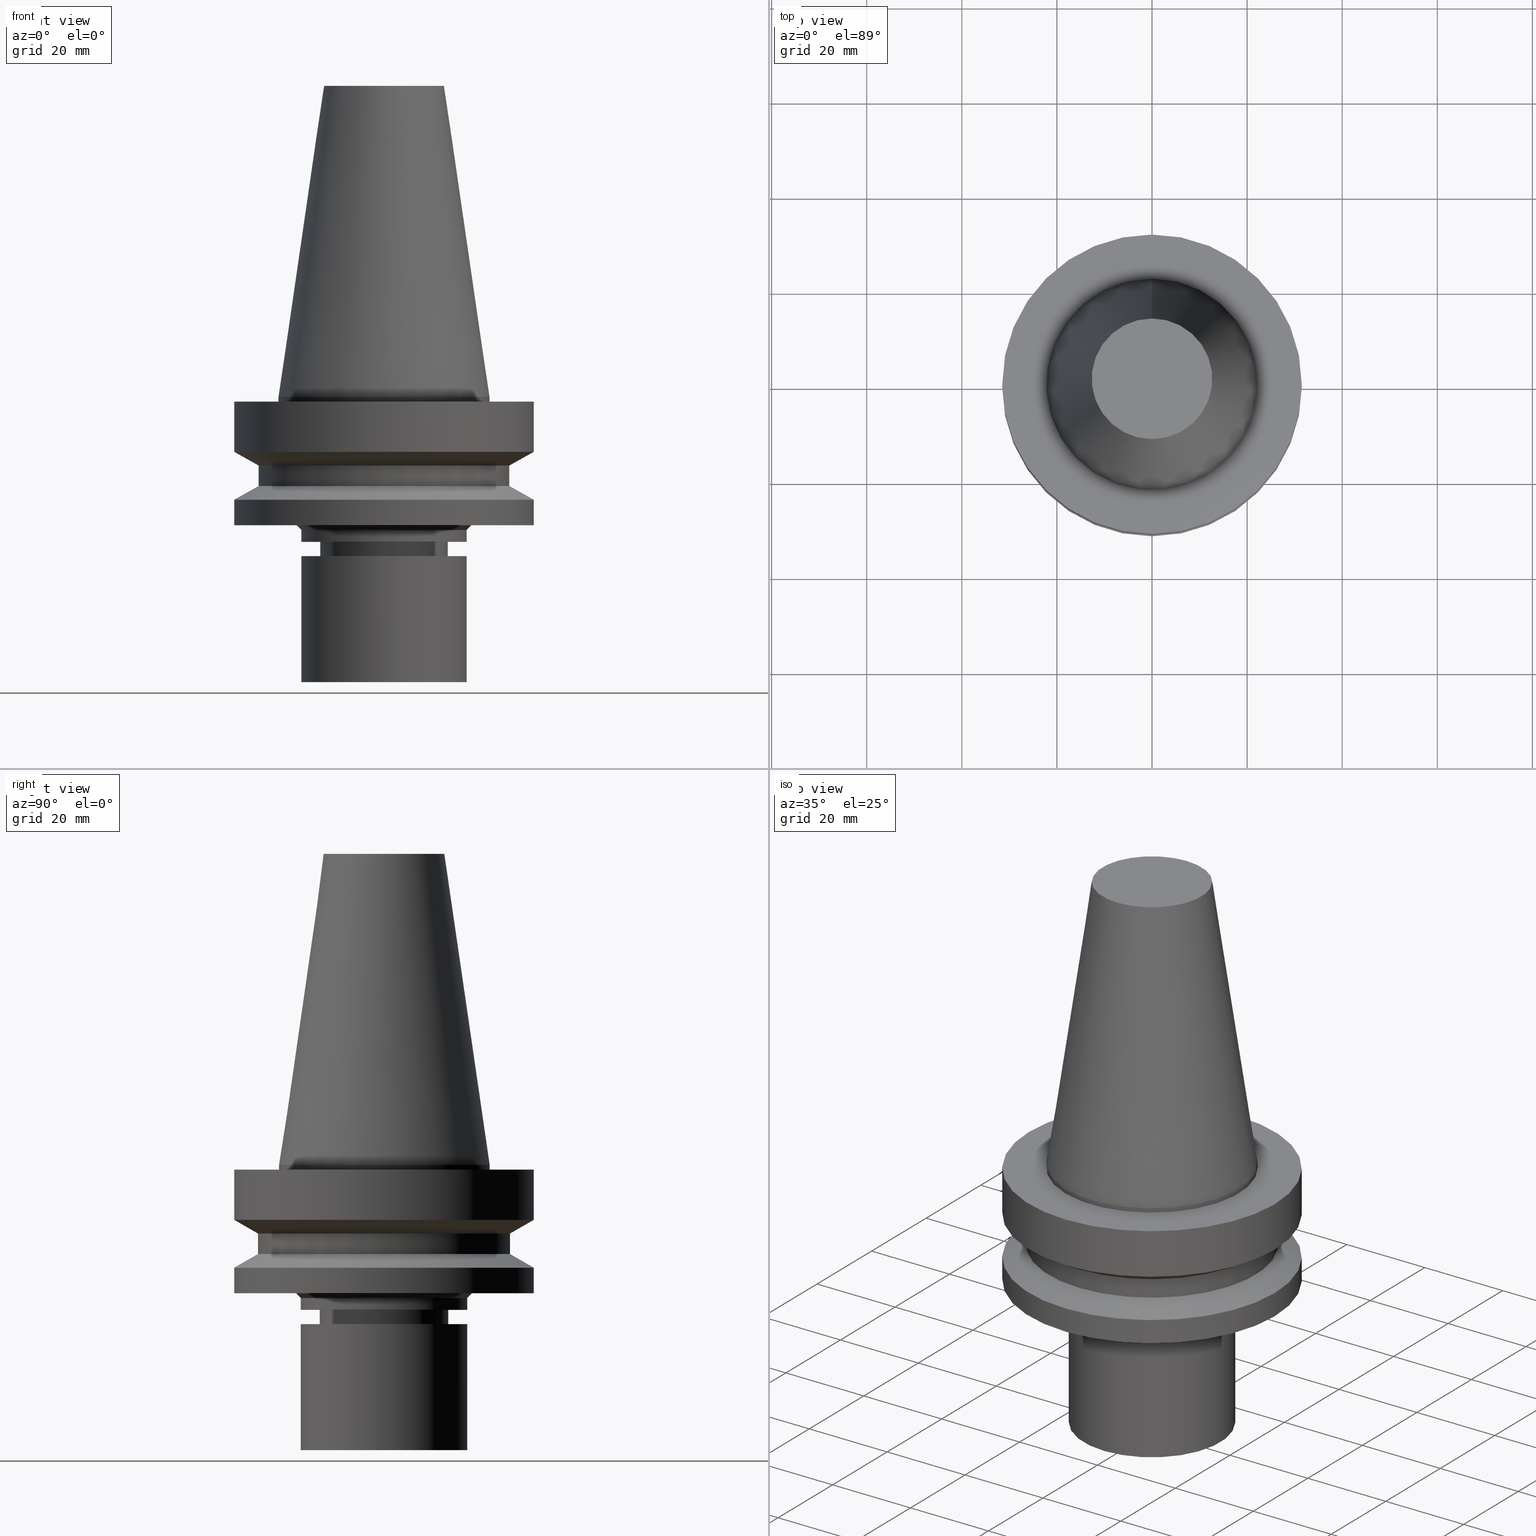
[diagram: canonical four-view strip — front | top / right | iso, engineering-drawing reading convention]
A machine part, canonical four-view strip (front | top / right | iso — engineering-drawing reading convention). The complete STEP part file that produces these views, byte-faithful:
ISO-10303-21;
HEADER;
FILE_DESCRIPTION((''),'1');
FILE_NAME('V:/90_\X2\53D65F9730C730FC30BF\X0\/00_\X2\6DE18DEF30C730FC30BF\X0\/ALL/BBT-BKUS\X2\FF76FF80FF9BFF78FF9E752852A05DE556F3\X0\201801/BBT40-MEGAER/BBT40-MEGAER20-60NL.stp','2018-02-07T01:54:12',(''),(''),'Spatial Interop R21 SP3','Kubotek KeyCreator 2011 V10.0.2 (22737)',' ');
FILE_SCHEMA(('automotive_design'));
ENDSEC;
DATA;
#1=MECHANICAL_DESIGN_GEOMETRIC_PRESENTATION_REPRESENTATION(' ',(#14,#15,#16,#17,#18,#19,#20,#21,#22,#23,#24,#25,#26,#27,#28,#29,#30,#31,#32,#33,#34,#35,#36,#37,#38,#39,#40,#41,#42,#43,#44,#45,#46,#47,#48,#49,#50,#51,#52,#53,#54,#55),#10);
#2=PRODUCT_DEFINITION_CONTEXT('',#56,'design');
#3=APPLICATION_PROTOCOL_DEFINITION('INTERNATIONAL STANDARD','automotive_design',1994,#56);
#4=PRODUCT_CATEGORY_RELATIONSHIP('NONE','NONE',#57,#58);
#5=SHAPE_DEFINITION_REPRESENTATION(#59,#60);
#6=PRODUCT_DEFINITION_CONTEXT('',#61,'design');
#7=APPLICATION_PROTOCOL_DEFINITION('INTERNATIONAL STANDARD','automotive_design',1994,#61);
#8=PRODUCT_CATEGORY_RELATIONSHIP('NONE','NONE',#62,#63);
#9=SHAPE_DEFINITION_REPRESENTATION(#64,#65);
#10= (GEOMETRIC_REPRESENTATION_CONTEXT(3)GLOBAL_UNCERTAINTY_ASSIGNED_CONTEXT((#68))GLOBAL_UNIT_ASSIGNED_CONTEXT((#70,#71,#72))REPRESENTATION_CONTEXT('NONE','WORKSPACE'));
#14=STYLED_ITEM('',(#74,#75),#76);
#15=STYLED_ITEM('',(#77,#78),#79);
#16=STYLED_ITEM('',(#80),#81);
#17=STYLED_ITEM('',(#82),#83);
#18=STYLED_ITEM('',(#84,#85),#86);
#19=STYLED_ITEM('',(#87,#88),#89);
#20=STYLED_ITEM('',(#90,#91),#92);
#21=STYLED_ITEM('',(#93),#94);
#22=STYLED_ITEM('',(#95,#96),#97);
#23=STYLED_ITEM('',(#98,#99),#100);
#24=STYLED_ITEM('',(#101,#102),#103);
#25=STYLED_ITEM('',(#104),#105);
#26=STYLED_ITEM('',(#106),#107);
#27=STYLED_ITEM('',(#108,#109),#110);
#28=STYLED_ITEM('',(#111,#112),#113);
#29=STYLED_ITEM('',(#114),#115);
#30=STYLED_ITEM('',(#116),#117);
#31=STYLED_ITEM('',(#118,#119),#120);
#32=STYLED_ITEM('',(#121,#122),#123);
#33=STYLED_ITEM('',(#124),#125);
#34=STYLED_ITEM('',(#126),#127);
#35=STYLED_ITEM('',(#128,#129),#130);
#36=STYLED_ITEM('',(#131,#132),#133);
#37=STYLED_ITEM('',(#134,#135),#136);
#38=STYLED_ITEM('',(#137,#138),#139);
#39=STYLED_ITEM('',(#140),#141);
#40=STYLED_ITEM('',(#142),#143);
#41=STYLED_ITEM('',(#144),#145);
#42=STYLED_ITEM('',(#146),#147);
#43=STYLED_ITEM('',(#148),#149);
#44=STYLED_ITEM('',(#150,#151),#152);
#45=STYLED_ITEM('',(#153),#154);
#46=STYLED_ITEM('',(#155),#156);
#47=STYLED_ITEM('',(#157),#158);
#48=STYLED_ITEM('',(#159,#160),#161);
#49=STYLED_ITEM('',(#162),#163);
#50=STYLED_ITEM('',(#164,#165),#166);
#51=STYLED_ITEM('',(#167,#168),#169);
#52=STYLED_ITEM('',(#170),#171);
#53=STYLED_ITEM('',(#172,#173),#174);
#54=STYLED_ITEM('',(#175,#176),#177);
#55=STYLED_ITEM('',(#178,#179),#180);
#56=APPLICATION_CONTEXT(' ');
#57=PRODUCT_CATEGORY('part','NONE');
#58=PRODUCT_RELATED_PRODUCT_CATEGORY('detail',' ',(#181));
#59=PRODUCT_DEFINITION_SHAPE('NONE','NONE',#182);
#60=ADVANCED_BREP_SHAPE_REPRESENTATION('Unnamed[1]',(#177,#183),#10);
#61=APPLICATION_CONTEXT(' ');
#62=PRODUCT_CATEGORY('part','NONE');
#63=PRODUCT_RELATED_PRODUCT_CATEGORY('detail',' ',(#184));
#64=PRODUCT_DEFINITION_SHAPE('NONE','NONE',#185);
#65=ADVANCED_BREP_SHAPE_REPRESENTATION('Unnamed[1]',(#123,#186),#10);
#68=UNCERTAINTY_MEASURE_WITH_UNIT(LENGTH_MEASURE(1.0E-006),#70,'','');
#70= (CONVERSION_BASED_UNIT('MILLIMETRE',#189)LENGTH_UNIT()NAMED_UNIT(#192));
#71= (NAMED_UNIT(#194)PLANE_ANGLE_UNIT()SI_UNIT($,.RADIAN.));
#72= (NAMED_UNIT(#194)SOLID_ANGLE_UNIT()SI_UNIT($,.STERADIAN.));
#74=PRESENTATION_STYLE_ASSIGNMENT((#200));
#75=PRESENTATION_STYLE_ASSIGNMENT((#201));
#76=ADVANCED_FACE('Unnamed[1]',(#202,#203),#204,.T.);
#77=PRESENTATION_STYLE_ASSIGNMENT((#205));
#78=PRESENTATION_STYLE_ASSIGNMENT((#206));
#79=ADVANCED_FACE('Unnamed[1]',(#207),#208,.T.);
#80=PRESENTATION_STYLE_ASSIGNMENT((#209));
#81=EDGE_CURVE('Unnamed[1]',#210,#210,#211,.T.);
#82=PRESENTATION_STYLE_ASSIGNMENT((#212));
#83=EDGE_CURVE('Unnamed[1]',#213,#213,#214,.T.);
#84=PRESENTATION_STYLE_ASSIGNMENT((#215));
#85=PRESENTATION_STYLE_ASSIGNMENT((#216));
#86=ADVANCED_FACE('Unnamed[1]',(#217,#218),#219,.T.);
#87=PRESENTATION_STYLE_ASSIGNMENT((#220));
#88=PRESENTATION_STYLE_ASSIGNMENT((#221));
#89=ADVANCED_FACE('Unnamed[1]',(#222,#223),#224,.T.);
#90=PRESENTATION_STYLE_ASSIGNMENT((#225));
#91=PRESENTATION_STYLE_ASSIGNMENT((#226));
#92=ADVANCED_FACE('Unnamed[1]',(#227,#228),#229,.T.);
#93=PRESENTATION_STYLE_ASSIGNMENT((#230));
#94=EDGE_CURVE('Unnamed[1]',#231,#231,#232,.T.);
#95=PRESENTATION_STYLE_ASSIGNMENT((#233));
#96=PRESENTATION_STYLE_ASSIGNMENT((#234));
#97=ADVANCED_FACE('Unnamed[1]',(#235,#236),#237,.T.);
#98=PRESENTATION_STYLE_ASSIGNMENT((#238));
#99=PRESENTATION_STYLE_ASSIGNMENT((#239));
#100=ADVANCED_FACE('Unnamed[1]',(#240,#241),#242,.T.);
#101=PRESENTATION_STYLE_ASSIGNMENT((#243));
#102=PRESENTATION_STYLE_ASSIGNMENT((#244));
#103=ADVANCED_FACE('Unnamed[1]',(#245,#246),#247,.T.);
#104=PRESENTATION_STYLE_ASSIGNMENT((#248));
#105=EDGE_CURVE('Unnamed[1]',#249,#249,#250,.T.);
#106=PRESENTATION_STYLE_ASSIGNMENT((#251));
#107=EDGE_CURVE('Unnamed[1]',#252,#252,#253,.T.);
#108=PRESENTATION_STYLE_ASSIGNMENT((#254));
#109=PRESENTATION_STYLE_ASSIGNMENT((#255));
#110=ADVANCED_FACE('Unnamed[1]',(#256,#257),#258,.T.);
#111=PRESENTATION_STYLE_ASSIGNMENT((#259));
#112=PRESENTATION_STYLE_ASSIGNMENT((#260));
#113=ADVANCED_FACE('Unnamed[1]',(#261),#262,.T.);
#114=PRESENTATION_STYLE_ASSIGNMENT((#263));
#115=EDGE_CURVE('Unnamed[1]',#264,#264,#265,.T.);
#116=PRESENTATION_STYLE_ASSIGNMENT((#266));
#117=EDGE_CURVE('Unnamed[1]',#267,#267,#268,.T.);
#118=PRESENTATION_STYLE_ASSIGNMENT((#269));
#119=PRESENTATION_STYLE_ASSIGNMENT((#270));
#120=ADVANCED_FACE('Unnamed[1]',(#271,#272),#273,.T.);
#121=PRESENTATION_STYLE_ASSIGNMENT((#274));
#122=PRESENTATION_STYLE_ASSIGNMENT((#275));
#123=MANIFOLD_SOLID_BREP('Unnamed[1]',#276);
#124=PRESENTATION_STYLE_ASSIGNMENT((#277));
#125=EDGE_CURVE('Unnamed[1]',#278,#278,#279,.T.);
#126=PRESENTATION_STYLE_ASSIGNMENT((#280));
#127=EDGE_CURVE('Unnamed[1]',#281,#281,#282,.T.);
#128=PRESENTATION_STYLE_ASSIGNMENT((#283));
#129=PRESENTATION_STYLE_ASSIGNMENT((#284));
#130=ADVANCED_FACE('Unnamed[1]',(#285,#286),#287,.T.);
#131=PRESENTATION_STYLE_ASSIGNMENT((#288));
#132=PRESENTATION_STYLE_ASSIGNMENT((#289));
#133=ADVANCED_FACE('Unnamed[1]',(#290),#291,.T.);
#134=PRESENTATION_STYLE_ASSIGNMENT((#292));
#135=PRESENTATION_STYLE_ASSIGNMENT((#293));
#136=ADVANCED_FACE('Unnamed[1]',(#294,#295),#296,.T.);
#137=PRESENTATION_STYLE_ASSIGNMENT((#297));
#138=PRESENTATION_STYLE_ASSIGNMENT((#298));
#139=ADVANCED_FACE('Unnamed[1]',(#299,#300),#301,.T.);
#140=PRESENTATION_STYLE_ASSIGNMENT((#302));
#141=EDGE_CURVE('Unnamed[1]',#303,#303,#304,.T.);
#142=PRESENTATION_STYLE_ASSIGNMENT((#305));
#143=EDGE_CURVE('Unnamed[1]',#306,#306,#307,.T.);
#144=PRESENTATION_STYLE_ASSIGNMENT((#308));
#145=EDGE_CURVE('Unnamed[1]',#309,#309,#310,.T.);
#146=PRESENTATION_STYLE_ASSIGNMENT((#311));
#147=EDGE_CURVE('Unnamed[1]',#312,#312,#313,.T.);
#148=PRESENTATION_STYLE_ASSIGNMENT((#314));
#149=EDGE_CURVE('Unnamed[1]',#315,#315,#316,.T.);
#150=PRESENTATION_STYLE_ASSIGNMENT((#317));
#151=PRESENTATION_STYLE_ASSIGNMENT((#318));
#152=ADVANCED_FACE('Unnamed[1]',(#319,#320),#321,.T.);
#153=PRESENTATION_STYLE_ASSIGNMENT((#322));
#154=EDGE_CURVE('Unnamed[1]',#323,#323,#324,.T.);
#155=PRESENTATION_STYLE_ASSIGNMENT((#325));
#156=EDGE_CURVE('Unnamed[1]',#326,#326,#327,.T.);
#157=PRESENTATION_STYLE_ASSIGNMENT((#328));
#158=EDGE_CURVE('Unnamed[1]',#329,#329,#330,.T.);
#159=PRESENTATION_STYLE_ASSIGNMENT((#331));
#160=PRESENTATION_STYLE_ASSIGNMENT((#332));
#161=ADVANCED_FACE('Unnamed[1]',(#333),#334,.T.);
#162=PRESENTATION_STYLE_ASSIGNMENT((#335));
#163=EDGE_CURVE('Unnamed[1]',#336,#336,#337,.T.);
#164=PRESENTATION_STYLE_ASSIGNMENT((#338));
#165=PRESENTATION_STYLE_ASSIGNMENT((#339));
#166=ADVANCED_FACE('Unnamed[1]',(#340,#341),#342,.T.);
#167=PRESENTATION_STYLE_ASSIGNMENT((#343));
#168=PRESENTATION_STYLE_ASSIGNMENT((#344));
#169=ADVANCED_FACE('Unnamed[1]',(#345,#346),#347,.T.);
#170=PRESENTATION_STYLE_ASSIGNMENT((#348));
#171=EDGE_CURVE('Unnamed[1]',#349,#349,#350,.T.);
#172=PRESENTATION_STYLE_ASSIGNMENT((#351));
#173=PRESENTATION_STYLE_ASSIGNMENT((#352));
#174=ADVANCED_FACE('Unnamed[1]',(#353,#354),#355,.T.);
#175=PRESENTATION_STYLE_ASSIGNMENT((#356));
#176=PRESENTATION_STYLE_ASSIGNMENT((#357));
#177=MANIFOLD_SOLID_BREP('Unnamed[1]',#358);
#178=PRESENTATION_STYLE_ASSIGNMENT((#359));
#179=PRESENTATION_STYLE_ASSIGNMENT((#360));
#180=ADVANCED_FACE('Unnamed[1]',(#361,#362),#363,.T.);
#181=PRODUCT('Unnamed[1]','Unnamed[1]','PART-Unnamed[1]-DESC',(#364));
#182=PRODUCT_DEFINITION('NONE','NONE',#365,#2);
#183=AXIS2_PLACEMENT_3D('',#366,#367,#368);
#184=PRODUCT('Unnamed[1]','Unnamed[1]','PART-Unnamed[1]-DESC',(#369));
#185=PRODUCT_DEFINITION('NONE','NONE',#370,#6);
#186=AXIS2_PLACEMENT_3D('',#371,#372,#373);
#189=LENGTH_MEASURE_WITH_UNIT(LENGTH_MEASURE(1.0),#374);
#192=DIMENSIONAL_EXPONENTS(1.0,0.0,0.0,0.0,0.0,0.0,0.0);
#194=DIMENSIONAL_EXPONENTS(0.0,0.0,0.0,0.0,0.0,0.0,0.0);
#200=SURFACE_STYLE_USAGE(.BOTH.,#375);
#201=CURVE_STYLE('',#376,POSITIVE_LENGTH_MEASURE(1000.0),#377);
#202=FACE_OUTER_BOUND('',#378,.T.);
#203=FACE_BOUND('',#379,.T.);
#204=PLANE('',#380);
#205=SURFACE_STYLE_USAGE(.BOTH.,#381);
#206=CURVE_STYLE('',#382,POSITIVE_LENGTH_MEASURE(1000.0),#383);
#207=FACE_OUTER_BOUND('',#384,.T.);
#208=PLANE('',#385);
#209=CURVE_STYLE('',#386,POSITIVE_LENGTH_MEASURE(1000.0),#387);
#210=VERTEX_POINT('',#388);
#211=CIRCLE('',#389,12.6875000000001);
#212=CURVE_STYLE('',#390,POSITIVE_LENGTH_MEASURE(1000.0),#391);
#213=VERTEX_POINT('',#392);
#214=CIRCLE('',#393,13.4999999999908);
#215=SURFACE_STYLE_USAGE(.BOTH.,#394);
#216=CURVE_STYLE('',#395,POSITIVE_LENGTH_MEASURE(1000.0),#396);
#217=FACE_BOUND('',#397,.T.);
#218=FACE_BOUND('',#398,.T.);
#219=CYLINDRICAL_SURFACE('',#399,26.4999999999997);
#220=SURFACE_STYLE_USAGE(.BOTH.,#400);
#221=CURVE_STYLE('',#401,POSITIVE_LENGTH_MEASURE(1000.0),#402);
#222=FACE_BOUND('',#403,.T.);
#223=FACE_BOUND('',#404,.T.);
#224=CONICAL_SURFACE('',#405,11.9499999999988,0.523598775598656);
#225=SURFACE_STYLE_USAGE(.BOTH.,#406);
#226=CURVE_STYLE('',#407,POSITIVE_LENGTH_MEASURE(1000.0),#408);
#227=FACE_BOUND('',#409,.T.);
#228=FACE_BOUND('',#410,.T.);
#229=CONICAL_SURFACE('',#411,17.9999999999998,0.785398163397183);
#230=CURVE_STYLE('',#412,POSITIVE_LENGTH_MEASURE(1000.0),#413);
#231=VERTEX_POINT('',#414);
#232=CIRCLE('',#415,26.4999999999994);
#233=SURFACE_STYLE_USAGE(.BOTH.,#416);
#234=CURVE_STYLE('',#417,POSITIVE_LENGTH_MEASURE(1000.0),#418);
#235=FACE_BOUND('',#419,.T.);
#236=FACE_BOUND('',#420,.T.);
#237=CONICAL_SURFACE('',#421,17.4562500000001,0.144812498238936);
#238=SURFACE_STYLE_USAGE(.BOTH.,#422);
#239=CURVE_STYLE('',#423,POSITIVE_LENGTH_MEASURE(1000.0),#424);
#240=FACE_BOUND('',#425,.T.);
#241=FACE_BOUND('',#426,.T.);
#242=CYLINDRICAL_SURFACE('',#427,12.4999999999998);
#243=SURFACE_STYLE_USAGE(.BOTH.,#428);
#244=CURVE_STYLE('',#429,POSITIVE_LENGTH_MEASURE(1000.0),#430);
#245=FACE_BOUND('',#431,.T.);
#246=FACE_BOUND('',#432,.T.);
#247=CYLINDRICAL_SURFACE('',#433,17.4999999999998);
#248=CURVE_STYLE('',#434,POSITIVE_LENGTH_MEASURE(1000.0),#435);
#249=VERTEX_POINT('',#436);
#250=CIRCLE('',#437,31.5000000000007);
#251=CURVE_STYLE('',#438,POSITIVE_LENGTH_MEASURE(1000.0),#439);
#252=VERTEX_POINT('',#440);
#253=CIRCLE('',#441,22.225);
#254=SURFACE_STYLE_USAGE(.BOTH.,#442);
#255=CURVE_STYLE('',#443,POSITIVE_LENGTH_MEASURE(1000.0),#444);
#256=FACE_BOUND('',#445,.T.);
#257=FACE_BOUND('',#446,.T.);
#258=CYLINDRICAL_SURFACE('',#447,31.5000000000005);
#259=SURFACE_STYLE_USAGE(.BOTH.,#448);
#260=CURVE_STYLE('',#449,POSITIVE_LENGTH_MEASURE(1000.0),#450);
#261=FACE_OUTER_BOUND('',#451,.T.);
#262=PLANE('',#452);
#263=CURVE_STYLE('',#453,POSITIVE_LENGTH_MEASURE(1000.0),#454);
#264=VERTEX_POINT('',#455);
#265=CIRCLE('',#456,31.5000000000004);
#266=CURVE_STYLE('',#457,POSITIVE_LENGTH_MEASURE(1000.0),#458);
#267=VERTEX_POINT('',#459);
#268=CIRCLE('',#460,17.4999999999998);
#269=SURFACE_STYLE_USAGE(.BOTH.,#461);
#270=CURVE_STYLE('',#462,POSITIVE_LENGTH_MEASURE(1000.0),#463);
#271=FACE_BOUND('',#464,.T.);
#272=FACE_BOUND('',#465,.T.);
#273=CONICAL_SURFACE('',#466,13.0000000000002,1.04719755119483);
#274=SURFACE_STYLE_USAGE(.BOTH.,#467);
#275=CURVE_STYLE('',#468,POSITIVE_LENGTH_MEASURE(1000.0),#469);
#276=CLOSED_SHELL('',(#79,#161,#152));
#277=CURVE_STYLE('',#470,POSITIVE_LENGTH_MEASURE(1000.0),#471);
#278=VERTEX_POINT('',#472);
#279=CIRCLE('',#473,11.3999999999978);
#280=CURVE_STYLE('',#474,POSITIVE_LENGTH_MEASURE(1000.0),#475);
#281=VERTEX_POINT('',#476);
#282=CIRCLE('',#477,26.5);
#283=SURFACE_STYLE_USAGE(.BOTH.,#478);
#284=CURVE_STYLE('',#479,POSITIVE_LENGTH_MEASURE(1000.0),#480);
#285=FACE_BOUND('',#481,.T.);
#286=FACE_OUTER_BOUND('',#482,.T.);
#287=PLANE('',#483);
#288=SURFACE_STYLE_USAGE(.BOTH.,#484);
#289=CURVE_STYLE('',#485,POSITIVE_LENGTH_MEASURE(1000.0),#486);
#290=FACE_OUTER_BOUND('',#487,.T.);
#291=PLANE('',#488);
#292=SURFACE_STYLE_USAGE(.BOTH.,#489);
#293=CURVE_STYLE('',#490,POSITIVE_LENGTH_MEASURE(1000.0),#491);
#294=FACE_BOUND('',#492,.T.);
#295=FACE_BOUND('',#493,.T.);
#296=CYLINDRICAL_SURFACE('',#494,22.225);
#297=SURFACE_STYLE_USAGE(.BOTH.,#495);
#298=CURVE_STYLE('',#496,POSITIVE_LENGTH_MEASURE(1000.0),#497);
#299=FACE_BOUND('',#498,.T.);
#300=FACE_BOUND('',#499,.T.);
#301=CONICAL_SURFACE('',#500,28.9999999999999,1.04719755119657);
#302=CURVE_STYLE('',#501,POSITIVE_LENGTH_MEASURE(1000.0),#502);
#303=VERTEX_POINT('',#503);
#304=CIRCLE('',#504,17.5);
#305=CURVE_STYLE('',#505,POSITIVE_LENGTH_MEASURE(1000.0),#506);
#306=VERTEX_POINT('',#507);
#307=CIRCLE('',#508,12.4999999999999);
#308=CURVE_STYLE('',#509,POSITIVE_LENGTH_MEASURE(1000.0),#510);
#309=VERTEX_POINT('',#511);
#310=CIRCLE('',#512,17.5);
#311=CURVE_STYLE('',#513,POSITIVE_LENGTH_MEASURE(1000.0),#514);
#312=VERTEX_POINT('',#515);
#313=CIRCLE('',#516,22.225);
#314=CURVE_STYLE('',#517,POSITIVE_LENGTH_MEASURE(1000.0),#518);
#315=VERTEX_POINT('',#519);
#316=CIRCLE('',#520,13.5000000000005);
#317=SURFACE_STYLE_USAGE(.BOTH.,#521);
#318=CURVE_STYLE('',#522,POSITIVE_LENGTH_MEASURE(1000.0),#523);
#319=FACE_BOUND('',#524,.T.);
#320=FACE_BOUND('',#525,.T.);
#321=CYLINDRICAL_SURFACE('',#526,17.5);
#322=CURVE_STYLE('',#527,POSITIVE_LENGTH_MEASURE(1000.0),#528);
#323=VERTEX_POINT('',#529);
#324=CIRCLE('',#530,31.4999999999996);
#325=CURVE_STYLE('',#531,POSITIVE_LENGTH_MEASURE(1000.0),#532);
#326=VERTEX_POINT('',#533);
#327=CIRCLE('',#534,17.4999999999997);
#328=CURVE_STYLE('',#535,POSITIVE_LENGTH_MEASURE(1000.0),#536);
#329=VERTEX_POINT('',#537);
#330=CIRCLE('',#538,12.4999999999998);
#331=SURFACE_STYLE_USAGE(.BOTH.,#539);
#332=CURVE_STYLE('',#540,POSITIVE_LENGTH_MEASURE(1000.0),#541);
#333=FACE_OUTER_BOUND('',#542,.T.);
#334=PLANE('',#543);
#335=CURVE_STYLE('',#544,POSITIVE_LENGTH_MEASURE(1000.0),#545);
#336=VERTEX_POINT('',#546);
#337=CIRCLE('',#547,31.5000000000003);
#338=SURFACE_STYLE_USAGE(.BOTH.,#548);
#339=CURVE_STYLE('',#549,POSITIVE_LENGTH_MEASURE(1000.0),#550);
#340=FACE_BOUND('',#551,.T.);
#341=FACE_OUTER_BOUND('',#552,.T.);
#342=PLANE('',#553);
#343=SURFACE_STYLE_USAGE(.BOTH.,#554);
#344=CURVE_STYLE('',#555,POSITIVE_LENGTH_MEASURE(1000.0),#556);
#345=FACE_BOUND('',#557,.T.);
#346=FACE_BOUND('',#558,.T.);
#347=CYLINDRICAL_SURFACE('',#559,13.4999999999956);
#348=CURVE_STYLE('',#560,POSITIVE_LENGTH_MEASURE(1000.0),#561);
#349=VERTEX_POINT('',#562);
#350=CIRCLE('',#563,18.4999999999998);
#351=SURFACE_STYLE_USAGE(.BOTH.,#564);
#352=CURVE_STYLE('',#565,POSITIVE_LENGTH_MEASURE(1000.0),#566);
#353=FACE_BOUND('',#567,.T.);
#354=FACE_BOUND('',#568,.T.);
#355=CYLINDRICAL_SURFACE('',#569,31.5);
#356=SURFACE_STYLE_USAGE(.BOTH.,#570);
#357=CURVE_STYLE('',#571,POSITIVE_LENGTH_MEASURE(1000.0),#572);
#358=CLOSED_SHELL('',(#133,#97,#136,#76,#174,#139,#86,#180,#110,#166,#92,#103,#130,#169,#120,#100,#89,#113));
#359=SURFACE_STYLE_USAGE(.BOTH.,#573);
#360=CURVE_STYLE('',#574,POSITIVE_LENGTH_MEASURE(1000.0),#575);
#361=FACE_BOUND('',#576,.T.);
#362=FACE_BOUND('',#577,.T.);
#363=CONICAL_SURFACE('',#578,29.0000000000003,1.04719755119651);
#364=PRODUCT_CONTEXT('',#56,'mechanical');
#365=PRODUCT_DEFINITION_FORMATION_WITH_SPECIFIED_SOURCE(' ','NONE',#181,.NOT_KNOWN.);
#366=CARTESIAN_POINT('',(0.0,0.0,0.0));
#367=DIRECTION('',(0.0,0.0,1.0));
#368=DIRECTION('',(1.0,0.0,0.0));
#369=PRODUCT_CONTEXT('',#61,'mechanical');
#370=PRODUCT_DEFINITION_FORMATION_WITH_SPECIFIED_SOURCE(' ','NONE',#184,.NOT_KNOWN.);
#371=CARTESIAN_POINT('',(0.0,0.0,0.0));
#372=DIRECTION('',(0.0,0.0,1.0));
#373=DIRECTION('',(1.0,0.0,0.0));
#374= (NAMED_UNIT(#192)LENGTH_UNIT()SI_UNIT(.MILLI.,.METRE.));
#375=SURFACE_SIDE_STYLE('',(#580));
#376=DRAUGHTING_PRE_DEFINED_CURVE_FONT('continuous');
#377=COLOUR_RGB('',0.0,1.0,0.0);
#378=EDGE_LOOP('',(#581));
#379=EDGE_LOOP('',(#582));
#380=AXIS2_PLACEMENT_3D('',#583,#584,#585);
#381=SURFACE_SIDE_STYLE('',(#586));
#382=DRAUGHTING_PRE_DEFINED_CURVE_FONT('continuous');
#383=COLOUR_RGB('',0.0,1.0,0.0);
#384=EDGE_LOOP('',(#587));
#385=AXIS2_PLACEMENT_3D('',#588,#589,#590);
#386=DRAUGHTING_PRE_DEFINED_CURVE_FONT('continuous');
#387=COLOUR_RGB('',0.0,1.0,0.0);
#388=CARTESIAN_POINT('',(-4.00459503321185E-015,12.6875000000002,65.4000000000001));
#389=AXIS2_PLACEMENT_3D('',#591,#592,#593);
#390=DRAUGHTING_PRE_DEFINED_CURVE_FONT('continuous');
#391=COLOUR_RGB('',0.0,1.0,0.0);
#392=CARTESIAN_POINT('',(1.86758636869969E-015,13.4999999999908,-30.4999999999996));
#393=AXIS2_PLACEMENT_3D('',#594,#595,#596);
#394=SURFACE_SIDE_STYLE('',(#597));
#395=DRAUGHTING_PRE_DEFINED_CURVE_FONT('continuous');
#396=COLOUR_RGB('',0.0,1.0,0.0);
#397=EDGE_LOOP('',(#598));
#398=EDGE_LOOP('',(#599));
#399=AXIS2_PLACEMENT_3D('',#600,#601,#602);
#400=SURFACE_SIDE_STYLE('',(#603));
#401=DRAUGHTING_PRE_DEFINED_CURVE_FONT('continuous');
#402=COLOUR_RGB('',0.0,1.0,0.0);
#403=EDGE_LOOP('',(#604));
#404=EDGE_LOOP('',(#605));
#405=AXIS2_PLACEMENT_3D('',#606,#607,#608);
#406=SURFACE_SIDE_STYLE('',(#609));
#407=DRAUGHTING_PRE_DEFINED_CURVE_FONT('continuous');
#408=COLOUR_RGB('',0.0,1.0,0.0);
#409=EDGE_LOOP('',(#610));
#410=EDGE_LOOP('',(#611));
#411=AXIS2_PLACEMENT_3D('',#612,#613,#614);
#412=DRAUGHTING_PRE_DEFINED_CURVE_FONT('continuous');
#413=COLOUR_RGB('',0.0,1.0,0.0);
#414=CARTESIAN_POINT('',(8.8494551369045E-016,26.4999999999995,-14.4522569986152));
#415=AXIS2_PLACEMENT_3D('',#615,#616,#617);
#416=SURFACE_SIDE_STYLE('',(#618));
#417=DRAUGHTING_PRE_DEFINED_CURVE_FONT('continuous');
#418=COLOUR_RGB('',0.0,1.0,0.0);
#419=EDGE_LOOP('',(#619));
#420=EDGE_LOOP('',(#620));
#421=AXIS2_PLACEMENT_3D('',#621,#622,#623);
#422=SURFACE_SIDE_STYLE('',(#624));
#423=DRAUGHTING_PRE_DEFINED_CURVE_FONT('continuous');
#424=COLOUR_RGB('',0.0,1.0,0.0);
#425=EDGE_LOOP('',(#625));
#426=EDGE_LOOP('',(#626));
#427=AXIS2_PLACEMENT_3D('',#627,#628,#629);
#428=SURFACE_SIDE_STYLE('',(#630));
#429=DRAUGHTING_PRE_DEFINED_CURVE_FONT('continuous');
#430=COLOUR_RGB('',0.0,1.0,0.0);
#431=EDGE_LOOP('',(#631));
#432=EDGE_LOOP('',(#632));
#433=AXIS2_PLACEMENT_3D('',#633,#634,#635);
#434=DRAUGHTING_PRE_DEFINED_CURVE_FONT('continuous');
#435=COLOUR_RGB('',0.0,1.0,0.0);
#436=CARTESIAN_POINT('',(1.32473071268174E-015,31.5000000000007,-21.6344943473346));
#437=AXIS2_PLACEMENT_3D('',#636,#637,#638);
#438=DRAUGHTING_PRE_DEFINED_CURVE_FONT('continuous');
#439=COLOUR_RGB('',0.0,1.0,0.0);
#440=CARTESIAN_POINT('',(6.12323399573622E-017,22.2250000000001,-0.999999999999912));
#441=AXIS2_PLACEMENT_3D('',#639,#640,#641);
#442=SURFACE_SIDE_STYLE('',(#642));
#443=DRAUGHTING_PRE_DEFINED_CURVE_FONT('continuous');
#444=COLOUR_RGB('',0.0,1.0,0.0);
#445=EDGE_LOOP('',(#643));
#446=EDGE_LOOP('',(#644));
#447=AXIS2_PLACEMENT_3D('',#645,#646,#647);
#448=SURFACE_SIDE_STYLE('',(#648));
#449=DRAUGHTING_PRE_DEFINED_CURVE_FONT('continuous');
#450=COLOUR_RGB('',0.0,1.0,0.0);
#451=EDGE_LOOP('',(#649));
#452=AXIS2_PLACEMENT_3D('',#650,#651,#652);
#453=DRAUGHTING_PRE_DEFINED_CURVE_FONT('continuous');
#454=COLOUR_RGB('',0.0,1.0,0.0);
#455=CARTESIAN_POINT('',(1.65327317884891E-015,31.5000000000004,-26.9999999999998));
#456=AXIS2_PLACEMENT_3D('',#653,#654,#655);
#457=DRAUGHTING_PRE_DEFINED_CURVE_FONT('continuous');
#458=COLOUR_RGB('',0.0,1.0,0.0);
#459=CARTESIAN_POINT('',(1.71450551880632E-015,17.4999999999999,-28.0000000000003));
#460=AXIS2_PLACEMENT_3D('',#656,#657,#658);
#461=SURFACE_SIDE_STYLE('',(#659));
#462=DRAUGHTING_PRE_DEFINED_CURVE_FONT('continuous');
#463=COLOUR_RGB('',0.0,1.0,0.0);
#464=EDGE_LOOP('',(#660));
#465=EDGE_LOOP('',(#661));
#466=AXIS2_PLACEMENT_3D('',#662,#663,#664);
#467=SURFACE_SIDE_STYLE('',(#665));
#468=DRAUGHTING_PRE_DEFINED_CURVE_FONT('continuous');
#469=COLOUR_RGB('',0.0,1.0,0.0);
#470=DRAUGHTING_PRE_DEFINED_CURVE_FONT('continuous');
#471=COLOUR_RGB('',0.0,1.0,0.0);
#472=CARTESIAN_POINT('',(3.07386346585986E-015,11.3999999999978,-50.2000000000001));
#473=AXIS2_PLACEMENT_3D('',#666,#667,#668);
#474=DRAUGHTING_PRE_DEFINED_CURVE_FONT('continuous');
#475=COLOUR_RGB('',0.0,1.0,0.0);
#476=CARTESIAN_POINT('',(1.1479681728942E-015,26.5,-18.7477430013855));
#477=AXIS2_PLACEMENT_3D('',#669,#670,#671);
#478=SURFACE_SIDE_STYLE('',(#672));
#479=DRAUGHTING_PRE_DEFINED_CURVE_FONT('continuous');
#480=COLOUR_RGB('',0.0,1.0,0.0);
#481=EDGE_LOOP('',(#673));
#482=EDGE_LOOP('',(#674));
#483=AXIS2_PLACEMENT_3D('',#675,#676,#677);
#484=SURFACE_SIDE_STYLE('',(#678));
#485=DRAUGHTING_PRE_DEFINED_CURVE_FONT('continuous');
#486=COLOUR_RGB('',0.0,1.0,0.0);
#487=EDGE_LOOP('',(#679));
#488=AXIS2_PLACEMENT_3D('',#680,#681,#682);
#489=SURFACE_SIDE_STYLE('',(#683));
#490=DRAUGHTING_PRE_DEFINED_CURVE_FONT('continuous');
#491=COLOUR_RGB('',0.0,1.0,0.0);
#492=EDGE_LOOP('',(#684));
#493=EDGE_LOOP('',(#685));
#494=AXIS2_PLACEMENT_3D('',#686,#687,#688);
#495=SURFACE_SIDE_STYLE('',(#689));
#496=DRAUGHTING_PRE_DEFINED_CURVE_FONT('continuous');
#497=COLOUR_RGB('',0.0,1.0,0.0);
#498=EDGE_LOOP('',(#690));
#499=EDGE_LOOP('',(#691));
#500=AXIS2_PLACEMENT_3D('',#692,#693,#694);
#501=DRAUGHTING_PRE_DEFINED_CURVE_FONT('continuous');
#502=COLOUR_RGB('',0.0,1.0,0.0);
#503=CARTESIAN_POINT('',(3.67394039744205E-015,17.5,-59.9999999999999));
#504=AXIS2_PLACEMENT_3D('',#695,#696,#697);
#505=DRAUGHTING_PRE_DEFINED_CURVE_FONT('continuous');
#506=COLOUR_RGB('',0.0,1.0,0.0);
#507=CARTESIAN_POINT('',(2.2594534521581E-015,12.4999999999999,-36.8996751345975));
#508=AXIS2_PLACEMENT_3D('',#698,#699,#700);
#509=DRAUGHTING_PRE_DEFINED_CURVE_FONT('continuous');
#510=COLOUR_RGB('',0.0,1.0,0.0);
#511=CARTESIAN_POINT('',(2.05128432290317E-015,17.5,-33.500015258789));
#512=AXIS2_PLACEMENT_3D('',#701,#702,#703);
#513=DRAUGHTING_PRE_DEFINED_CURVE_FONT('continuous');
#514=COLOUR_RGB('',0.0,1.0,0.0);
#515=CARTESIAN_POINT('',(1.71319921032766E-029,22.2250000000001,-2.8153873565375E-013));
#516=AXIS2_PLACEMENT_3D('',#704,#705,#706);
#517=DRAUGHTING_PRE_DEFINED_CURVE_FONT('continuous');
#518=COLOUR_RGB('',0.0,1.0,0.0);
#519=CARTESIAN_POINT('',(2.22410094420044E-015,13.5000000000005,-36.3223248654052));
#520=AXIS2_PLACEMENT_3D('',#707,#708,#709);
#521=SURFACE_SIDE_STYLE('',(#710));
#522=DRAUGHTING_PRE_DEFINED_CURVE_FONT('continuous');
#523=COLOUR_RGB('',0.0,1.0,0.0);
#524=EDGE_LOOP('',(#711));
#525=EDGE_LOOP('',(#712));
#526=AXIS2_PLACEMENT_3D('',#713,#714,#715);
#527=DRAUGHTING_PRE_DEFINED_CURVE_FONT('continuous');
#528=COLOUR_RGB('',0.0,1.0,0.0);
#529=CARTESIAN_POINT('',(6.12323399573568E-017,31.4999999999997,-0.999999999999825));
#530=AXIS2_PLACEMENT_3D('',#716,#717,#718);
#531=DRAUGHTING_PRE_DEFINED_CURVE_FONT('continuous');
#532=COLOUR_RGB('',0.0,1.0,0.0);
#533=CARTESIAN_POINT('',(1.8675863686997E-015,17.4999999999998,-30.4999999999998));
#534=AXIS2_PLACEMENT_3D('',#719,#720,#721);
#535=DRAUGHTING_PRE_DEFINED_CURVE_FONT('continuous');
#536=COLOUR_RGB('',0.0,1.0,0.0);
#537=CARTESIAN_POINT('',(2.95720018960001E-015,12.4999999999998,-48.2947441116725));
#538=AXIS2_PLACEMENT_3D('',#722,#723,#724);
#539=SURFACE_SIDE_STYLE('',(#725));
#540=DRAUGHTING_PRE_DEFINED_CURVE_FONT('continuous');
#541=COLOUR_RGB('',0.0,1.0,0.0);
#542=EDGE_LOOP('',(#726));
#543=AXIS2_PLACEMENT_3D('',#727,#728,#729);
#544=DRAUGHTING_PRE_DEFINED_CURVE_FONT('continuous');
#545=COLOUR_RGB('',0.0,1.0,0.0);
#546=CARTESIAN_POINT('',(7.08182973902924E-016,31.5000000000004,-11.5655056526664));
#547=AXIS2_PLACEMENT_3D('',#730,#731,#732);
#548=SURFACE_SIDE_STYLE('',(#733));
#549=DRAUGHTING_PRE_DEFINED_CURVE_FONT('continuous');
#550=COLOUR_RGB('',0.0,1.0,0.0);
#551=EDGE_LOOP('',(#734));
#552=EDGE_LOOP('',(#735));
#553=AXIS2_PLACEMENT_3D('',#736,#737,#738);
#554=SURFACE_SIDE_STYLE('',(#739));
#555=DRAUGHTING_PRE_DEFINED_CURVE_FONT('continuous');
#556=COLOUR_RGB('',0.0,1.0,0.0);
#557=EDGE_LOOP('',(#740));
#558=EDGE_LOOP('',(#741));
#559=AXIS2_PLACEMENT_3D('',#742,#743,#744);
#560=DRAUGHTING_PRE_DEFINED_CURVE_FONT('continuous');
#561=COLOUR_RGB('',0.0,1.0,0.0);
#562=CARTESIAN_POINT('',(1.65327317884891E-015,18.4999999999999,-26.9999999999998));
#563=AXIS2_PLACEMENT_3D('',#745,#746,#747);
#564=SURFACE_SIDE_STYLE('',(#748));
#565=DRAUGHTING_PRE_DEFINED_CURVE_FONT('continuous');
#566=COLOUR_RGB('',0.0,1.0,0.0);
#567=EDGE_LOOP('',(#749));
#568=EDGE_LOOP('',(#750));
#569=AXIS2_PLACEMENT_3D('',#751,#752,#753);
#570=SURFACE_SIDE_STYLE('',(#754));
#571=DRAUGHTING_PRE_DEFINED_CURVE_FONT('continuous');
#572=COLOUR_RGB('',0.0,1.0,0.0);
#573=SURFACE_SIDE_STYLE('',(#755));
#574=DRAUGHTING_PRE_DEFINED_CURVE_FONT('continuous');
#575=COLOUR_RGB('',0.0,1.0,0.0);
#576=EDGE_LOOP('',(#756));
#577=EDGE_LOOP('',(#757));
#578=AXIS2_PLACEMENT_3D('',#758,#759,#760);
#580=SURFACE_STYLE_FILL_AREA(#761);
#581=ORIENTED_EDGE('',*,*,#154,.F.);
#582=ORIENTED_EDGE('',*,*,#107,.T.);
#583=CARTESIAN_POINT('',(6.12323399573595E-017,26.8624999999999,-0.999999999999869));
#584=DIRECTION('',(-6.12323399573677E-017,-9.35138060429241E-015,1.0));
#585=DIRECTION('',(5.77434068963536E-031,-1.0,-9.35138060429241E-015));
#586=SURFACE_STYLE_FILL_AREA(#762);
#587=ORIENTED_EDGE('',*,*,#141,.T.);
#588=CARTESIAN_POINT('',(3.67394039744205E-015,8.75000000000001,-59.9999999999999));
#589=DIRECTION('',(6.12323399573677E-017,-6.8958416095395E-016,-1.0));
#590=DIRECTION('',(3.73976990419794E-032,1.0,-6.8958416095395E-016));
#591=CARTESIAN_POINT('',(-4.00459503321185E-015,7.66316136430044E-014,65.4000000000001));
#592=DIRECTION('',(6.12323399573677E-017,-5.36731610657134E-016,-1.0));
#593=DIRECTION('',(2.80381797188541E-032,1.0,-5.36731610657134E-016));
#594=CARTESIAN_POINT('',(1.86758636869969E-015,2.51590521809854E-014,-30.4999999999996));
#595=DIRECTION('',(6.12323399573676E-017,-5.36731610657134E-016,-1.0));
#596=DIRECTION('',(2.80381797188541E-032,1.0,-5.36731610657134E-016));
#597=SURFACE_STYLE_FILL_AREA(#763);
#598=ORIENTED_EDGE('',*,*,#127,.F.);
#599=ORIENTED_EDGE('',*,*,#94,.T.);
#600=CARTESIAN_POINT('',(1.01645684329232E-015,3.26196215691192E-014,-16.6000000000003));
#601=DIRECTION('',(6.12323399573677E-017,-5.36731610657134E-016,-1.0));
#602=DIRECTION('',(2.80381797188541E-032,1.0,-5.36731610657134E-016));
#603=SURFACE_STYLE_FILL_AREA(#764);
#604=ORIENTED_EDGE('',*,*,#125,.F.);
#605=ORIENTED_EDGE('',*,*,#158,.T.);
#606=CARTESIAN_POINT('',(3.01553182772994E-015,1.50967449818676E-014,-49.2473720558363));
#607=DIRECTION('',(-6.12323399573677E-017,5.36731610657134E-016,1.0));
#608=DIRECTION('',(2.80381797188541E-032,1.0,-5.36731610657134E-016));
#609=SURFACE_STYLE_FILL_AREA(#765);
#610=ORIENTED_EDGE('',*,*,#117,.F.);
#611=ORIENTED_EDGE('',*,*,#171,.T.);
#612=CARTESIAN_POINT('',(1.68388934882761E-015,2.67692470129565E-014,-27.5000000000001));
#613=DIRECTION('',(-6.12323399573677E-017,5.36731610657134E-016,1.0));
#614=DIRECTION('',(2.80381797188541E-032,1.0,-5.36731610657134E-016));
#615=CARTESIAN_POINT('',(8.8494551369045E-016,3.37723831295302E-014,-14.4522569986152));
#616=DIRECTION('',(6.12323399573677E-017,-5.36731610657134E-016,-1.0));
#617=DIRECTION('',(2.80381797188541E-032,1.0,-5.36731610657134E-016));
#618=SURFACE_STYLE_FILL_AREA(#766);
#619=ORIENTED_EDGE('',*,*,#147,.F.);
#620=ORIENTED_EDGE('',*,*,#81,.T.);
#621=CARTESIAN_POINT('',(-2.00229751660592E-015,5.9080489974516E-014,32.6999999999999));
#622=DIRECTION('',(6.12323399573677E-017,-5.36731610657134E-016,-1.0));
#623=DIRECTION('',(2.80381797188541E-032,1.0,-5.36731610657134E-016));
#624=SURFACE_STYLE_FILL_AREA(#767);
#625=ORIENTED_EDGE('',*,*,#158,.F.);
#626=ORIENTED_EDGE('',*,*,#143,.T.);
#627=CARTESIAN_POINT('',(2.60832682087905E-015,1.86660973755029E-014,-42.597209623135));
#628=DIRECTION('',(6.12323399573677E-017,-5.36731610657134E-016,-1.0));
#629=DIRECTION('',(2.80381797188541E-032,1.0,-5.36731610657134E-016));
#630=SURFACE_STYLE_FILL_AREA(#768);
#631=ORIENTED_EDGE('',*,*,#156,.F.);
#632=ORIENTED_EDGE('',*,*,#117,.T.);
#633=CARTESIAN_POINT('',(1.79104594375301E-015,2.58299666943066E-014,-29.2500000000001));
#634=DIRECTION('',(6.12323399573676E-017,-5.36731610657134E-016,-1.0));
#635=DIRECTION('',(2.80381797188541E-032,1.0,-5.36731610657134E-016));
#636=CARTESIAN_POINT('',(1.32473071268174E-015,2.99174493092302E-014,-21.6344943473346));
#637=DIRECTION('',(6.12323399573677E-017,-5.36731610657134E-016,-1.0));
#638=DIRECTION('',(2.80381797188541E-032,1.0,-5.36731610657134E-016));
#639=CARTESIAN_POINT('',(6.12323399573616E-017,4.09926346953707E-014,-0.999999999999901));
#640=DIRECTION('',(6.12323399573677E-017,-5.36731610657134E-016,-1.0));
#641=DIRECTION('',(2.80381797188541E-032,1.0,-5.36731610657134E-016));
#642=SURFACE_STYLE_FILL_AREA(#769);
#643=ORIENTED_EDGE('',*,*,#115,.F.);
#644=ORIENTED_EDGE('',*,*,#105,.T.);
#645=CARTESIAN_POINT('',(1.48900194576533E-015,2.84775310637577E-014,-24.3172471736672));
#646=DIRECTION('',(6.12323399573677E-017,-5.36731610657134E-016,-1.0));
#647=DIRECTION('',(2.80381797188541E-032,1.0,-5.36731610657134E-016));
#648=SURFACE_STYLE_FILL_AREA(#770);
#649=ORIENTED_EDGE('',*,*,#125,.T.);
#650=CARTESIAN_POINT('',(3.07386346585986E-015,5.69999999999892,-50.2000000000001));
#651=DIRECTION('',(6.12323399573677E-017,-8.60349874170221E-015,-1.0));
#652=DIRECTION('',(5.21985207043926E-031,1.0,-8.60349874170221E-015));
#653=CARTESIAN_POINT('',(1.65327317884891E-015,2.70376128182853E-014,-26.9999999999997));
#654=DIRECTION('',(6.12323399573677E-017,-5.36731610657134E-016,-1.0));
#655=DIRECTION('',(2.80381797188541E-032,1.0,-5.36731610657134E-016));
#656=CARTESIAN_POINT('',(1.71450551880631E-015,2.65008812076278E-014,-28.0000000000003));
#657=DIRECTION('',(6.12323399573677E-017,-5.36731610657134E-016,-1.0));
#658=DIRECTION('',(2.80381797188541E-032,1.0,-5.36731610657134E-016));
#659=SURFACE_STYLE_FILL_AREA(#771);
#660=ORIENTED_EDGE('',*,*,#143,.F.);
#661=ORIENTED_EDGE('',*,*,#149,.T.);
#662=CARTESIAN_POINT('',(2.24177719817927E-015,2.18790853082587E-014,-36.6110000000013));
#663=DIRECTION('',(-6.12323399573677E-017,5.36731610657134E-016,1.0));
#664=DIRECTION('',(2.80381797188541E-032,1.0,-5.36731610657134E-016));
#665=SURFACE_STYLE_FILL_AREA(#772);
#666=CARTESIAN_POINT('',(3.07386346585986E-015,1.45854394510396E-014,-50.2000000000001));
#667=DIRECTION('',(6.12323399573677E-017,-5.36731610657134E-016,-1.0));
#668=DIRECTION('',(2.80381797188541E-032,1.0,-5.36731610657134E-016));
#669=CARTESIAN_POINT('',(1.1479681728942E-015,3.14668600087081E-014,-18.7477430013855));
#670=DIRECTION('',(6.12323399573677E-017,-5.36731610657134E-016,-1.0));
#671=DIRECTION('',(2.80381797188541E-032,1.0,-5.36731610657134E-016));
#672=SURFACE_STYLE_FILL_AREA(#773);
#673=ORIENTED_EDGE('',*,*,#83,.F.);
#674=ORIENTED_EDGE('',*,*,#156,.T.);
#675=CARTESIAN_POINT('',(1.86758636869969E-015,15.4999999999953,-30.4999999999997));
#676=DIRECTION('',(6.12323399573677E-017,-4.69509915640865E-014,-1.0));
#677=DIRECTION('',(2.87009192405687E-030,1.0,-4.69509915640865E-014));
#678=SURFACE_STYLE_FILL_AREA(#774);
#679=ORIENTED_EDGE('',*,*,#81,.F.);
#680=CARTESIAN_POINT('',(-4.00459503321185E-015,6.34375000000014,65.4000000000001));
#681=DIRECTION('',(-6.12323399573677E-017,9.97602686800683E-016,1.0));
#682=DIRECTION('',(-5.62583941297938E-032,-1.0,9.97602686800683E-016));
#683=SURFACE_STYLE_FILL_AREA(#775);
#684=ORIENTED_EDGE('',*,*,#107,.F.);
#685=ORIENTED_EDGE('',*,*,#147,.T.);
#686=CARTESIAN_POINT('',(3.06161699786891E-017,4.12610005006991E-014,-0.500000000000085));
#687=DIRECTION('',(6.12323399573677E-017,-5.36731610657134E-016,-1.0));
#688=DIRECTION('',(2.80381797188541E-032,1.0,-5.36731610657134E-016));
#689=SURFACE_STYLE_FILL_AREA(#776);
#690=ORIENTED_EDGE('',*,*,#94,.F.);
#691=ORIENTED_EDGE('',*,*,#163,.T.);
#692=CARTESIAN_POINT('',(7.96564243796686E-016,3.45470884792691E-014,-13.0088813256408));
#693=DIRECTION('',(-6.12323399573677E-017,5.36731610657134E-016,1.0));
#694=DIRECTION('',(2.80381797188541E-032,1.0,-5.36731610657134E-016));
#695=CARTESIAN_POINT('',(3.67394039744205E-015,9.32546966659976E-015,-59.9999999999999));
#696=DIRECTION('',(6.12323399573677E-017,-5.36731610657134E-016,-1.0));
#697=DIRECTION('',(2.80381797188541E-032,1.0,-5.36731610657134E-016));
#698=CARTESIAN_POINT('',(2.2594534521581E-015,2.17241442383103E-014,-36.8996751345975));
#699=DIRECTION('',(6.12323399573677E-017,-5.36731610657134E-016,-1.0));
#700=DIRECTION('',(2.80381797188541E-032,1.0,-5.36731610657134E-016));
#701=CARTESIAN_POINT('',(2.05128432290317E-015,2.35488491591394E-014,-33.500015258789));
#702=DIRECTION('',(6.12323399573676E-017,-5.36731610657134E-016,-1.0));
#703=DIRECTION('',(2.80381797188541E-032,1.0,-5.36731610657134E-016));
#704=CARTESIAN_POINT('',(1.65331138531142E-029,4.15293663060276E-014,-2.70006239588838E-013));
#705=DIRECTION('',(6.12323399573677E-017,-5.36731610657134E-016,-1.0));
#706=DIRECTION('',(2.80381797188541E-032,1.0,-5.36731610657134E-016));
#707=CARTESIAN_POINT('',(2.22410094420044E-015,2.20340263782072E-014,-36.3223248654052));
#708=DIRECTION('',(6.12323399573677E-017,-5.36731610657134E-016,-1.0));
#709=DIRECTION('',(2.80381797188541E-032,1.0,-5.36731610657134E-016));
#710=SURFACE_STYLE_FILL_AREA(#777);
#711=ORIENTED_EDGE('',*,*,#141,.F.);
#712=ORIENTED_EDGE('',*,*,#145,.T.);
#713=CARTESIAN_POINT('',(2.86261236017261E-015,1.64371594128696E-014,-46.7500076293945));
#714=DIRECTION('',(6.12323399573677E-017,-5.36731610657134E-016,-1.0));
#715=DIRECTION('',(2.80381797188541E-032,1.0,-5.36731610657134E-016));
#716=CARTESIAN_POINT('',(6.12323399573559E-017,4.09926346953707E-014,-0.999999999999808));
#717=DIRECTION('',(6.12323399573677E-017,-5.36731610657134E-016,-1.0));
#718=DIRECTION('',(2.80381797188541E-032,1.0,-5.36731610657134E-016));
#719=CARTESIAN_POINT('',(1.8675863686997E-015,2.51590521809853E-014,-30.4999999999998));
#720=DIRECTION('',(6.12323399573677E-017,-5.36731610657134E-016,-1.0));
#721=DIRECTION('',(2.80381797188541E-032,1.0,-5.36731610657134E-016));
#722=CARTESIAN_POINT('',(2.95720018960001E-015,1.56080505126956E-014,-48.2947441116725));
#723=DIRECTION('',(6.12323399573677E-017,-5.36731610657134E-016,-1.0));
#724=DIRECTION('',(2.80381797188541E-032,1.0,-5.36731610657134E-016));
#725=SURFACE_STYLE_FILL_AREA(#778);
#726=ORIENTED_EDGE('',*,*,#145,.F.);
#727=CARTESIAN_POINT('',(2.05128432290317E-015,8.75000000000002,-33.500015258789));
#728=DIRECTION('',(-6.12323399573677E-017,6.89584160953951E-016,1.0));
#729=DIRECTION('',(-3.73976990419794E-032,-1.0,6.89584160953951E-016));
#730=CARTESIAN_POINT('',(7.08182973902923E-016,3.5321793829008E-014,-11.5655056526663));
#731=DIRECTION('',(6.12323399573676E-017,-5.36731610657134E-016,-1.0));
#732=DIRECTION('',(2.80381797188541E-032,1.0,-5.36731610657134E-016));
#733=SURFACE_STYLE_FILL_AREA(#779);
#734=ORIENTED_EDGE('',*,*,#171,.F.);
#735=ORIENTED_EDGE('',*,*,#115,.T.);
#736=CARTESIAN_POINT('',(1.65327317884891E-015,25.0000000000001,-26.9999999999998));
#737=DIRECTION('',(6.12323399573677E-017,2.58203568831498E-015,-1.0));
#738=DIRECTION('',(-1.62931239779728E-031,1.0,2.58203568831498E-015));
#739=SURFACE_STYLE_FILL_AREA(#780);
#740=ORIENTED_EDGE('',*,*,#149,.F.);
#741=ORIENTED_EDGE('',*,*,#83,.T.);
#742=CARTESIAN_POINT('',(2.04584365645006E-015,2.35965392795963E-014,-33.4111624327024));
#743=DIRECTION('',(6.12323399573677E-017,-5.36731610657134E-016,-1.0));
#744=DIRECTION('',(2.80381797188541E-032,1.0,-5.36731610657134E-016));
#745=CARTESIAN_POINT('',(1.65327317884891E-015,2.70376128182852E-014,-26.9999999999998));
#746=DIRECTION('',(6.12323399573677E-017,-5.36731610657134E-016,-1.0));
#747=DIRECTION('',(2.80381797188541E-032,1.0,-5.36731610657134E-016));
#748=SURFACE_STYLE_FILL_AREA(#781);
#749=ORIENTED_EDGE('',*,*,#163,.F.);
#750=ORIENTED_EDGE('',*,*,#154,.T.);
#751=CARTESIAN_POINT('',(3.84707656930139E-016,3.81572142621893E-014,-6.28275282633307));
#752=DIRECTION('',(6.12323399573677E-017,-5.36731610657134E-016,-1.0));
#753=DIRECTION('',(2.80381797188541E-032,1.0,-5.36731610657134E-016));
#754=SURFACE_STYLE_FILL_AREA(#782);
#755=SURFACE_STYLE_FILL_AREA(#783);
#756=ORIENTED_EDGE('',*,*,#105,.F.);
#757=ORIENTED_EDGE('',*,*,#127,.T.);
#758=CARTESIAN_POINT('',(1.23634944278797E-015,3.06921546589691E-014,-20.1911186743601));
#759=DIRECTION('',(6.12323399573677E-017,-5.36731610657134E-016,-1.0));
#760=DIRECTION('',(2.80381797188541E-032,1.0,-5.36731610657134E-016));
#761=FILL_AREA_STYLE('',(#784));
#762=FILL_AREA_STYLE('',(#785));
#763=FILL_AREA_STYLE('',(#786));
#764=FILL_AREA_STYLE('',(#787));
#765=FILL_AREA_STYLE('',(#788));
#766=FILL_AREA_STYLE('',(#789));
#767=FILL_AREA_STYLE('',(#790));
#768=FILL_AREA_STYLE('',(#791));
#769=FILL_AREA_STYLE('',(#792));
#770=FILL_AREA_STYLE('',(#793));
#771=FILL_AREA_STYLE('',(#794));
#772=FILL_AREA_STYLE('',(#795));
#773=FILL_AREA_STYLE('',(#796));
#774=FILL_AREA_STYLE('',(#797));
#775=FILL_AREA_STYLE('',(#798));
#776=FILL_AREA_STYLE('',(#799));
#777=FILL_AREA_STYLE('',(#800));
#778=FILL_AREA_STYLE('',(#801));
#779=FILL_AREA_STYLE('',(#802));
#780=FILL_AREA_STYLE('',(#803));
#781=FILL_AREA_STYLE('',(#804));
#782=FILL_AREA_STYLE('',(#805));
#783=FILL_AREA_STYLE('',(#806));
#784=FILL_AREA_STYLE_COLOUR('',#807);
#785=FILL_AREA_STYLE_COLOUR('',#808);
#786=FILL_AREA_STYLE_COLOUR('',#809);
#787=FILL_AREA_STYLE_COLOUR('',#810);
#788=FILL_AREA_STYLE_COLOUR('',#811);
#789=FILL_AREA_STYLE_COLOUR('',#812);
#790=FILL_AREA_STYLE_COLOUR('',#813);
#791=FILL_AREA_STYLE_COLOUR('',#814);
#792=FILL_AREA_STYLE_COLOUR('',#815);
#793=FILL_AREA_STYLE_COLOUR('',#816);
#794=FILL_AREA_STYLE_COLOUR('',#817);
#795=FILL_AREA_STYLE_COLOUR('',#818);
#796=FILL_AREA_STYLE_COLOUR('',#819);
#797=FILL_AREA_STYLE_COLOUR('',#820);
#798=FILL_AREA_STYLE_COLOUR('',#821);
#799=FILL_AREA_STYLE_COLOUR('',#822);
#800=FILL_AREA_STYLE_COLOUR('',#823);
#801=FILL_AREA_STYLE_COLOUR('',#824);
#802=FILL_AREA_STYLE_COLOUR('',#825);
#803=FILL_AREA_STYLE_COLOUR('',#826);
#804=FILL_AREA_STYLE_COLOUR('',#827);
#805=FILL_AREA_STYLE_COLOUR('',#828);
#806=FILL_AREA_STYLE_COLOUR('',#829);
#807=COLOUR_RGB('',0.0,1.0,0.0);
#808=COLOUR_RGB('',0.0,1.0,0.0);
#809=COLOUR_RGB('',0.0,1.0,0.0);
#810=COLOUR_RGB('',0.0,1.0,0.0);
#811=COLOUR_RGB('',0.0,1.0,0.0);
#812=COLOUR_RGB('',0.0,1.0,0.0);
#813=COLOUR_RGB('',0.0,1.0,0.0);
#814=COLOUR_RGB('',0.0,1.0,0.0);
#815=COLOUR_RGB('',0.0,1.0,0.0);
#816=COLOUR_RGB('',0.0,1.0,0.0);
#817=COLOUR_RGB('',0.0,1.0,0.0);
#818=COLOUR_RGB('',0.0,1.0,0.0);
#819=COLOUR_RGB('',0.0,1.0,0.0);
#820=COLOUR_RGB('',0.0,1.0,0.0);
#821=COLOUR_RGB('',0.0,1.0,0.0);
#822=COLOUR_RGB('',0.0,1.0,0.0);
#823=COLOUR_RGB('',0.0,1.0,0.0);
#824=COLOUR_RGB('',0.0,1.0,0.0);
#825=COLOUR_RGB('',0.0,1.0,0.0);
#826=COLOUR_RGB('',0.0,1.0,0.0);
#827=COLOUR_RGB('',0.0,1.0,0.0);
#828=COLOUR_RGB('',0.0,1.0,0.0);
#829=COLOUR_RGB('',0.0,1.0,0.0);
ENDSEC;
END-ISO-10303-21;
